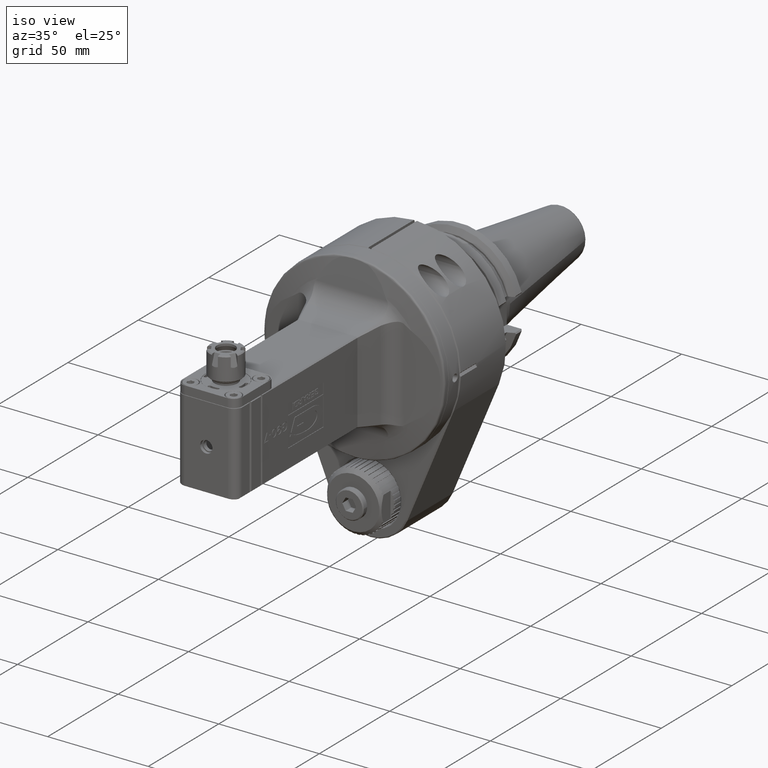
[diagram: clean part render]
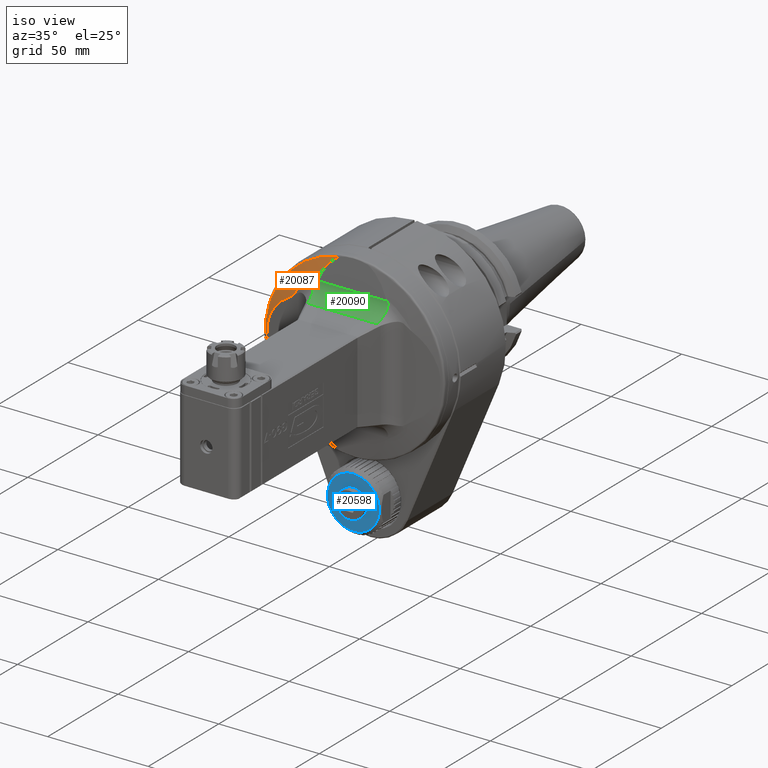
[diagram: same view with three faces highlighted in distinct colors, each labeled with its STEP entity id]
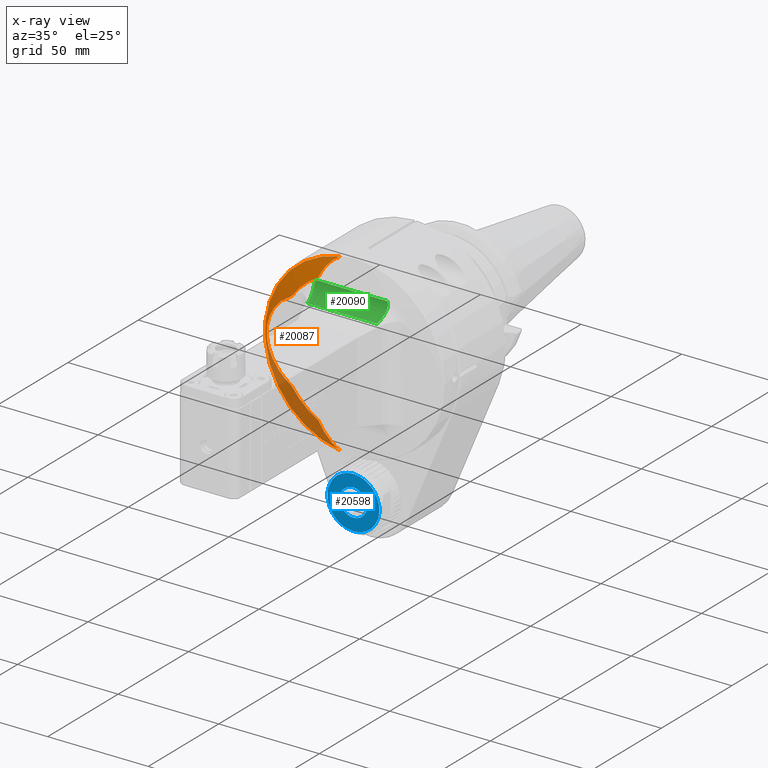
[diagram: x-ray of the same camera — body ghosted, the three highlighted faces saturated]
A machine part, iso view with three faces highlighted in distinct colors.
The next image is the same camera in x-ray (body ghosted, the three faces saturated) — at least one of them is partly hidden behind the body in this view.
Their STEP definitions:

[orange] entity #20087 — the highlighted conical surface has half-angle 79.875 deg.
#376=ELLIPSE('',#21794,27.0482605618794,19.4932377924185);
#378=ELLIPSE('',#21798,27.0482605618794,19.4932377924185);
#379=ELLIPSE('',#21800,28.2530290729761,23.684193051721);
#523=CONICAL_SURFACE('',#21796,40.13996082534,1.39408747072482);
#4948=FACE_OUTER_BOUND('',#6172,.T.);
#6172=EDGE_LOOP('',(#14821,#14822,#14823,#14824,#14825,#14826));
#7615=CIRCLE('',#21791,36.10413101219);
#7616=CIRCLE('',#21797,36.10413101219);
#7617=CIRCLE('',#21799,44.17579063848);
#8814=VERTEX_POINT('',#33792);
#8815=VERTEX_POINT('',#33836);
#8820=VERTEX_POINT('',#34117);
#8823=VERTEX_POINT('',#34176);
#8824=VERTEX_POINT('',#34177);
#8825=VERTEX_POINT('',#34179);
#11072=EDGE_CURVE('',#8815,#8814,#7615,.T.);
#11079=EDGE_CURVE('',#8815,#8820,#376,.T.);
#11083=EDGE_CURVE('',#8823,#8824,#7616,.T.);
#11084=EDGE_CURVE('',#8825,#8824,#378,.T.);
#11085=EDGE_CURVE('',#8820,#8825,#7617,.T.);
#11086=EDGE_CURVE('',#8823,#8814,#379,.T.);
#14821=ORIENTED_EDGE('',*,*,#11083,.T.);
#14822=ORIENTED_EDGE('',*,*,#11084,.F.);
#14823=ORIENTED_EDGE('',*,*,#11085,.F.);
#14824=ORIENTED_EDGE('',*,*,#11079,.F.);
#14825=ORIENTED_EDGE('',*,*,#11072,.T.);
#14826=ORIENTED_EDGE('',*,*,#11086,.F.);
#20087=ADVANCED_FACE('',(#4948),#523,.T.);
#21791=AXIS2_PLACEMENT_3D('',#33837,#25138,#25139);
#21794=AXIS2_PLACEMENT_3D('',#34118,#25146,#25147);
#21796=AXIS2_PLACEMENT_3D('',#34175,#25150,#25151);
#21797=AXIS2_PLACEMENT_3D('',#34178,#25152,#25153);
#21798=AXIS2_PLACEMENT_3D('',#34180,#25154,#25155);
#21799=AXIS2_PLACEMENT_3D('',#34181,#25156,#25157);
#21800=AXIS2_PLACEMENT_3D('',#34182,#25158,#25159);
#25138=DIRECTION('center_axis',(0.,1.,0.));
#25139=DIRECTION('ref_axis',(-0.467113337222199,0.,-0.884197449775298));
#25146=DIRECTION('center_axis',(0.,-0.992546151641327,-0.121869343405103));
#25147=DIRECTION('ref_axis',(-2.46276026974508E-15,0.121869343405102,-0.992546151641328));
#25150=DIRECTION('center_axis',(0.,1.,0.));
#25151=DIRECTION('ref_axis',(0.,0.,1.));
#25152=DIRECTION('center_axis',(0.,1.,0.));
#25153=DIRECTION('ref_axis',(-0.829982324767026,0.,0.557789692065318));
#25154=DIRECTION('center_axis',(0.,-0.992546151641327,0.121869343405103));
#25155=DIRECTION('ref_axis',(-9.85104107898032E-16,0.121869343405103,0.992546151641328));
#25156=DIRECTION('center_axis',(0.,1.,0.));
#25157=DIRECTION('ref_axis',(-0.152045707799498,0.,-0.988373463190787));
#25158=DIRECTION('center_axis',(-0.095845752520218,-0.995396198367179,0.));
#25159=DIRECTION('ref_axis',(-0.995396198367179,0.0958457525202182,4.40112026348895E-15));
#33792=CARTESIAN_POINT('',(-29.96579059119,89.41145196646,-20.13851211958));
#33836=CARTESIAN_POINT('',(-16.86472112461,89.41145196646,-31.92318056734));
#33837=CARTESIAN_POINT('Origin',(0.,89.41145196646,0.));
#34117=CARTESIAN_POINT('',(-6.716739355231,90.85281975687,-43.66217918255));
#34118=CARTESIAN_POINT('Origin',(-1.33226762955019E-14,87.7583298088026,
-18.4595810275838));
#34175=CARTESIAN_POINT('Origin',(0.,90.13213586167,0.));
#34176=CARTESIAN_POINT('',(-29.96579059119,89.41145196646,20.13851211958));
#34177=CARTESIAN_POINT('',(-16.86472112461,89.41145196646,31.92318056734));
#34178=CARTESIAN_POINT('Origin',(0.,89.41145196646,0.));
#34179=CARTESIAN_POINT('',(-6.716739355231,90.85281975687,43.66217918255));
#34180=CARTESIAN_POINT('Origin',(0.,87.7583298088026,18.4595810275838));
#34181=CARTESIAN_POINT('Origin',(0.,90.85281975687,0.));
#34182=CARTESIAN_POINT('Origin',(-15.1644238618566,87.9862424520727,8.88178419700125E-15));

[blue] entity #20598 — the highlighted planar face has unit normal (0, -1, 0).
#4612=FACE_BOUND('',#6725,.T.);
#5459=FACE_OUTER_BOUND('',#6724,.T.);
#6724=EDGE_LOOP('',(#17449));
#6725=EDGE_LOOP('',(#17450));
#7240=CIRCLE('',#21142,12.89999259851);
#7752=CIRCLE('',#22461,6.799999002111);
#8191=VERTEX_POINT('',#29658);
#9605=VERTEX_POINT('',#38642);
#10194=EDGE_CURVE('',#8191,#8191,#7240,.T.);
#12321=EDGE_CURVE('',#9605,#9605,#7752,.T.);
#17449=ORIENTED_EDGE('',*,*,#10194,.T.);
#17450=ORIENTED_EDGE('',*,*,#12321,.F.);
#19616=PLANE('',#22460);
#20598=ADVANCED_FACE('',(#5459,#4612),#19616,.T.);
#21142=AXIS2_PLACEMENT_3D('',#29660,#23458,#23459);
#22460=AXIS2_PLACEMENT_3D('',#38641,#27426,#27427);
#22461=AXIS2_PLACEMENT_3D('',#38643,#27428,#27429);
#23458=DIRECTION('center_axis',(0.,-1.,0.));
#23459=DIRECTION('ref_axis',(0.,0.,1.));
#27426=DIRECTION('center_axis',(0.,-1.,0.));
#27427=DIRECTION('ref_axis',(0.,0.,1.));
#27428=DIRECTION('center_axis',(0.,-1.,0.));
#27429=DIRECTION('ref_axis',(1.,0.,-5.004729392078E-11));
#29658=CARTESIAN_POINT('',(0.,90.5,-52.10000740149));
#29660=CARTESIAN_POINT('Origin',(0.,90.5,-65.));
#38641=CARTESIAN_POINT('Origin',(0.,90.5,-65.));
#38642=CARTESIAN_POINT('',(-2.86328037579941E-14,90.5000000000005,-58.2000009978886));
#38643=CARTESIAN_POINT('Origin',(-2.780004405678E-14,90.5,-65.));

[green] entity #20090 — the highlighted cylindrical surface (edge-blend (fillet) strip) has radius 9 mm, axis along (-1, 0, 0).
#156=B_SPLINE_CURVE_WITH_KNOTS('',3,(#34187,#34188,#34189,#34190,#34191,
#34192,#34193,#34194,#34195,#34196,#34197,#34198,#34199,#34200,#34201,#34202,
#34203,#34204,#34205,#34206,#34207,#34208,#34209,#34210,#34211,#34212,#34213,
#34214,#34215,#34216,#34217,#34218,#34219,#34220,#34221,#34222,#34223,#34224,
#34225,#34226,#34227,#34228,#34229,#34230,#34231,#34232,#34233,#34234,#34235,
#34236,#34237,#34238,#34239,#34240,#34241,#34242,#34243,#34244,#34245,#34246,
#34247,#34248,#34249,#34250,#34251,#34252,#34253,#34254,#34255,#34256,#34257,
#34258,#34259,#34260,#34261,#34262,#34263,#34264,#34265,#34266,#34267,#34268,
#34269,#34270,#34271,#34272,#34273,#34274,#34275,#34276,#34277,#34278,#34279,
#34280,#34281,#34282,#34283,#34284,#34285,#34286,#34287,#34288,#34289,#34290,
#34291,#34292,#34293,#34294,#34295,#34296,#34297,#34298,#34299,#34300,#34301,
#34302,#34303,#34304),.UNSPECIFIED.,.F.,.F.,(4,3,3,3,3,3,3,3,3,3,3,3,3,
3,3,3,3,3,3,3,3,3,3,3,3,3,3,3,3,3,3,3,3,3,3,3,3,3,3,4),(0.,0.03703703703704,
0.07407407407407,0.1111111111111,0.1481481481481,0.1851851851852,0.2222222222222,
0.256366530038744,0.2592592592593,0.293086973480604,0.2962962962963,0.325589205275055,
0.3333333333333,0.363215182848516,0.3703703703704,0.39905914448878,0.4074074074074,
0.438329225332138,0.4444444444444,0.471720678981945,0.4814814814815,0.507406488377274,
0.5185185185185,0.54718454312176,0.5555555555556,0.581668680912067,0.5925925925926,
0.619666199515129,0.6296296296296,0.6666666666667,0.697424217497282,0.7037037037037,
0.7407407407407,0.7777777777778,0.8148148148148,0.8518518518519,0.8888888888889,
0.9259259259259,0.962962962963,1.),.UNSPECIFIED.);
#160=B_SPLINE_CURVE_WITH_KNOTS('',3,(#34383,#34384,#34385,#34386,#34387,
#34388,#34389,#34390,#34391,#34392,#34393,#34394,#34395),.UNSPECIFIED.,
 .F.,.F.,(4,3,3,3,4),(0.,0.25,0.5,0.75,1.),.UNSPECIFIED.);
#161=B_SPLINE_CURVE_WITH_KNOTS('',3,(#34400,#34401,#34402,#34403,#34404,
#34405,#34406,#34407,#34408,#34409,#34410,#34411,#34412),.UNSPECIFIED.,
 .F.,.F.,(4,3,3,3,4),(0.,0.25,0.5,0.75,1.),.UNSPECIFIED.);
#162=B_SPLINE_CURVE_WITH_KNOTS('',3,(#34414,#34415,#34416,#34417,#34418,
#34419,#34420,#34421,#34422,#34423,#34424,#34425,#34426,#34427,#34428,#34429,
#34430,#34431,#34432,#34433,#34434,#34435,#34436,#34437,#34438,#34439,#34440,
#34441,#34442,#34443,#34444,#34445,#34446,#34447,#34448,#34449,#34450,#34451,
#34452,#34453,#34454,#34455,#34456,#34457,#34458,#34459,#34460,#34461,#34462,
#34463,#34464,#34465,#34466,#34467,#34468,#34469,#34470,#34471,#34472,#34473,
#34474,#34475,#34476,#34477,#34478,#34479,#34480,#34481,#34482,#34483,#34484,
#34485,#34486,#34487,#34488,#34489,#34490,#34491,#34492,#34493,#34494,#34495,
#34496,#34497,#34498,#34499,#34500,#34501,#34502,#34503,#34504,#34505,#34506,
#34507,#34508,#34509,#34510,#34511,#34512,#34513,#34514,#34515,#34516,#34517,
#34518,#34519,#34520,#34521,#34522,#34523,#34524,#34525,#34526,#34527,#34528,
#34529,#34530,#34531),.UNSPECIFIED.,.F.,.F.,(4,3,3,3,3,3,3,3,3,3,3,3,3,
3,3,3,3,3,3,3,3,3,3,3,3,3,3,3,3,3,3,3,3,3,3,3,3,3,3,4),(0.,0.03703703703704,
0.07407407407407,0.1111111111111,0.1481481481481,0.1851851851852,0.2222222222222,
0.2592592592593,0.2962962962963,0.327022392863665,0.3333333333333,0.3703703703704,
0.397558669574978,0.4074074074074,0.433375178878216,0.4444444444444,0.473200537845292,
0.4814814814815,0.507581899787348,0.5185185185185,0.545786923472923,0.5555555555556,
0.586937681315505,0.5925925925926,0.621177113709593,0.6296296296296,0.659515578072774,
0.6666666666667,0.695942135587504,0.7037037037037,0.737395565958845,0.7407407407407,
0.774858339972289,0.7777777777778,0.8148148148148,0.8518518518519,0.8888888888889,
0.9259259259259,0.962962962963,1.),.UNSPECIFIED.);
#1148=LINE('',#34398,#2950);
#1149=LINE('',#34532,#2951);
#2950=VECTOR('',#25168,34.57583625287);
#2951=VECTOR('',#25169,35.35472224596);
#4355=CYLINDRICAL_SURFACE('',#21804,9.);
#4951=FACE_OUTER_BOUND('',#6175,.T.);
#6175=EDGE_LOOP('',(#14839,#14840,#14841,#14842,#14843,#14844));
#8826=VERTEX_POINT('',#34184);
#8827=VERTEX_POINT('',#34186);
#8828=VERTEX_POINT('',#34371);
#8829=VERTEX_POINT('',#34397);
#8830=VERTEX_POINT('',#34399);
#8831=VERTEX_POINT('',#34413);
#11088=EDGE_CURVE('',#8827,#8826,#156,.T.);
#11092=EDGE_CURVE('',#8828,#8826,#160,.T.);
#11093=EDGE_CURVE('',#8829,#8828,#1148,.T.);
#11094=EDGE_CURVE('',#8830,#8829,#161,.T.);
#11095=EDGE_CURVE('',#8830,#8831,#162,.T.);
#11096=EDGE_CURVE('',#8831,#8827,#1149,.T.);
#14839=ORIENTED_EDGE('',*,*,#11092,.F.);
#14840=ORIENTED_EDGE('',*,*,#11093,.F.);
#14841=ORIENTED_EDGE('',*,*,#11094,.F.);
#14842=ORIENTED_EDGE('',*,*,#11095,.T.);
#14843=ORIENTED_EDGE('',*,*,#11096,.T.);
#14844=ORIENTED_EDGE('',*,*,#11088,.T.);
#20090=ADVANCED_FACE('',(#4951),#4355,.F.);
#21804=AXIS2_PLACEMENT_3D('',#34396,#25166,#25167);
#25166=DIRECTION('center_axis',(-1.,0.,0.));
#25167=DIRECTION('ref_axis',(0.,0.992546151641327,-0.121869343405103));
#25168=DIRECTION('',(-1.,0.,0.));
#25169=DIRECTION('',(-1.,0.,0.));
#34184=CARTESIAN_POINT('',(-17.50490180808,83.62729135467,23.40642198089));
#34186=CARTESIAN_POINT('',(-17.67736112298,89.25909479988,30.68233102194));
#34187=CARTESIAN_POINT('Ctrl Pts',(-17.677361122979,89.2590947998879,30.6823310219382));
#34188=CARTESIAN_POINT('Ctrl Pts',(-17.7172338579499,89.252933971511,30.6321551013598));
#34189=CARTESIAN_POINT('Ctrl Pts',(-17.7548650536605,89.2462518615009,30.5812465928936));
#34190=CARTESIAN_POINT('Ctrl Pts',(-17.7902024529922,89.2390489579599,30.5298525596544));
#34191=CARTESIAN_POINT('Ctrl Pts',(-17.8255398523239,89.231846054419,30.4784585264152));
#34192=CARTESIAN_POINT('Ctrl Pts',(-17.8585833248345,89.2241233089403,30.4265787448661));
#34193=CARTESIAN_POINT('Ctrl Pts',(-17.889748035211,89.2157667279215,30.3737235903888));
#34194=CARTESIAN_POINT('Ctrl Pts',(-17.9209127455875,89.2074101469027,30.3208684359115));
#34195=CARTESIAN_POINT('Ctrl Pts',(-17.9501986076842,89.1984203472311,30.2670377615341));
#34196=CARTESIAN_POINT('Ctrl Pts',(-17.9778383910329,89.1886402629311,30.2117406570443));
#34197=CARTESIAN_POINT('Ctrl Pts',(-18.0054781743817,89.1788601786312,30.1564435525544));
#34198=CARTESIAN_POINT('Ctrl Pts',(-18.0314718376433,89.1682900680088,30.0996799493343));
#34199=CARTESIAN_POINT('Ctrl Pts',(-18.0558921706048,89.156759488054,30.04109414454));
#34200=CARTESIAN_POINT('Ctrl Pts',(-18.0803125035664,89.1452289080993,29.9825083397455));
#34201=CARTESIAN_POINT('Ctrl Pts',(-18.1031592501548,89.1327394802841,29.9220999073775));
#34202=CARTESIAN_POINT('Ctrl Pts',(-18.1245248194519,89.1190016424408,29.8591869799401));
#34203=CARTESIAN_POINT('Ctrl Pts',(-18.1458903887489,89.1052638045975,29.7962740525029));
#34204=CARTESIAN_POINT('Ctrl Pts',(-18.1657746825205,89.0902781467245,29.730856468052));
#34205=CARTESIAN_POINT('Ctrl Pts',(-18.18409140905,89.0737218073433,29.6624353753302));
#34206=CARTESIAN_POINT('Ctrl Pts',(-18.2009775316679,89.0584585791433,29.5993582223521));
#34207=CARTESIAN_POINT('Ctrl Pts',(-18.2165312990033,89.041860539801,29.533728521559));
#34208=CARTESIAN_POINT('Ctrl Pts',(-18.2306319574851,89.0236274038298,29.4651973196547));
#34209=CARTESIAN_POINT('Ctrl Pts',(-18.2318265749609,89.0220826800214,29.459391309138));
#34210=CARTESIAN_POINT('Ctrl Pts',(-18.2330107644511,89.02052619204,29.4535644863794));
#34211=CARTESIAN_POINT('Ctrl Pts',(-18.2341844536743,89.0189577413287,29.4477166469537));
#34212=CARTESIAN_POINT('Ctrl Pts',(-18.2479096317329,89.0006162034974,29.3793317322855));
#34213=CARTESIAN_POINT('Ctrl Pts',(-18.2601987185499,88.9806425575017,29.3080709632248));
#34214=CARTESIAN_POINT('Ctrl Pts',(-18.2709064329141,88.9587328674908,29.2337635646219));
#34215=CARTESIAN_POINT('Ctrl Pts',(-18.2719223014941,88.9566542384833,29.2267138293619));
#34216=CARTESIAN_POINT('Ctrl Pts',(-18.272923943066,88.9545581498168,29.2196366905217));
#34217=CARTESIAN_POINT('Ctrl Pts',(-18.2739112379592,88.952444320404,29.2125320142637));
#34218=CARTESIAN_POINT('Ctrl Pts',(-18.282922715178,88.9331504643031,29.1476844913125));
#34219=CARTESIAN_POINT('Ctrl Pts',(-18.2907380265973,88.912382302136,29.0805413557444));
#34220=CARTESIAN_POINT('Ctrl Pts',(-18.2972828207608,88.8898259357248,29.01076795986));
#34221=CARTESIAN_POINT('Ctrl Pts',(-18.2990130594391,88.8838627386199,28.9923220583902));
#34222=CARTESIAN_POINT('Ctrl Pts',(-18.300654526662,88.8777743180017,28.9736924575184));
#34223=CARTESIAN_POINT('Ctrl Pts',(-18.3022059124798,88.8715543296477,28.9548732725599));
#34224=CARTESIAN_POINT('Ctrl Pts',(-18.3081921613123,88.8475535958553,28.88225669795));
#34225=CARTESIAN_POINT('Ctrl Pts',(-18.312837229868,88.821597383167,28.8068155686163));
#34226=CARTESIAN_POINT('Ctrl Pts',(-18.3160358041259,88.7933644154865,28.7284543842173));
#34227=CARTESIAN_POINT('Ctrl Pts',(-18.3168017004472,88.7866040515421,28.7096908545862));
#34228=CARTESIAN_POINT('Ctrl Pts',(-18.3174847172125,88.779712958738,28.6907600252466));
#34229=CARTESIAN_POINT('Ctrl Pts',(-18.3180835222015,88.7726863628323,28.6716608293995));
#34230=CARTESIAN_POINT('Ctrl Pts',(-18.3204844349683,88.744513177693,28.5950824708556));
#34231=CARTESIAN_POINT('Ctrl Pts',(-18.3215307152963,88.7141649250617,28.5157956012498));
#34232=CARTESIAN_POINT('Ctrl Pts',(-18.3211575688271,88.6813084575688,28.4337372492643));
#34233=CARTESIAN_POINT('Ctrl Pts',(-18.3210489854202,88.6717474206253,28.4098587560872));
#34234=CARTESIAN_POINT('Ctrl Pts',(-18.3208203026174,88.6619737381211,28.3857457711738));
#34235=CARTESIAN_POINT('Ctrl Pts',(-18.3204701708906,88.6519785603306,28.3613972325434));
#34236=CARTESIAN_POINT('Ctrl Pts',(-18.3191732891788,88.6149565989029,28.2712106768966));
#34237=CARTESIAN_POINT('Ctrl Pts',(-18.3162095916324,88.5748983877502,28.1777902025322));
#34238=CARTESIAN_POINT('Ctrl Pts',(-18.3115462390987,88.5314451539607,28.0813692537875));
#34239=CARTESIAN_POINT('Ctrl Pts',(-18.310623996344,88.5228516732538,28.0623006715321));
#34240=CARTESIAN_POINT('Ctrl Pts',(-18.3096353632947,88.5141253232964,28.0431148475003));
#34241=CARTESIAN_POINT('Ctrl Pts',(-18.3085802142472,88.5052632015043,28.0238137509485));
#34242=CARTESIAN_POINT('Ctrl Pts',(-18.3038738427561,88.4657347221374,27.9377234201338));
#34243=CARTESIAN_POINT('Ctrl Pts',(-18.2978453240762,88.42350144447,27.8493399090426));
#34244=CARTESIAN_POINT('Ctrl Pts',(-18.2905851959041,88.3785968701287,27.7593846243053));
#34245=CARTESIAN_POINT('Ctrl Pts',(-18.2879871585133,88.362527764957,27.7271941191642));
#34246=CARTESIAN_POINT('Ctrl Pts',(-18.2852315299893,88.3461170238791,27.6948022312797));
#34247=CARTESIAN_POINT('Ctrl Pts',(-18.2823228459035,88.329367744176,27.6622415976175));
#34248=CARTESIAN_POINT('Ctrl Pts',(-18.2745972869667,88.2848811159688,27.5757595022918));
#34249=CARTESIAN_POINT('Ctrl Pts',(-18.2657911143598,88.2380024656355,27.4880877772703));
#34250=CARTESIAN_POINT('Ctrl Pts',(-18.2560523802534,88.1888209804831,27.3997877649324));
#34251=CARTESIAN_POINT('Ctrl Pts',(-18.2518781438738,88.1677407104719,27.3619404307923));
#34252=CARTESIAN_POINT('Ctrl Pts',(-18.2475326390244,88.14623796661,27.3239774607355));
#34253=CARTESIAN_POINT('Ctrl Pts',(-18.2430277137071,88.1243225459687,27.2859420058368));
#34254=CARTESIAN_POINT('Ctrl Pts',(-18.2314062279535,88.0677867033448,27.1878208459707));
#34255=CARTESIAN_POINT('Ctrl Pts',(-18.2187222110158,88.0085009500269,27.0892182764914));
#34256=CARTESIAN_POINT('Ctrl Pts',(-18.2051743063955,87.9465321052079,26.9906032983913));
#34257=CARTESIAN_POINT('Ctrl Pts',(-18.2012180662263,87.928436049767,26.9618058903355));
#34258=CARTESIAN_POINT('Ctrl Pts',(-18.1971881738088,87.9101115117793,26.9330073144342));
#34259=CARTESIAN_POINT('Ctrl Pts',(-18.1930895991305,87.8915609520277,26.9042189587913));
#34260=CARTESIAN_POINT('Ctrl Pts',(-18.180304216812,87.8336930303093,26.8144145360107));
#34261=CARTESIAN_POINT('Ctrl Pts',(-18.1668508001592,87.7736218589718,26.7247108625941));
#34262=CARTESIAN_POINT('Ctrl Pts',(-18.1528949138825,87.7115059549695,26.6355233442872));
#34263=CARTESIAN_POINT('Ctrl Pts',(-18.1470567437275,87.685520989937,26.5982135026006));
#34264=CARTESIAN_POINT('Ctrl Pts',(-18.1411305898322,87.6591787483801,26.5609937091952));
#34265=CARTESIAN_POINT('Ctrl Pts',(-18.1351282844067,87.6324932223704,26.523893097976));
#34266=CARTESIAN_POINT('Ctrl Pts',(-18.1202522892073,87.5663563418429,26.4319436760006));
#34267=CARTESIAN_POINT('Ctrl Pts',(-18.1049082697638,87.4981073142986,26.3407276914174));
#34268=CARTESIAN_POINT('Ctrl Pts',(-18.0892661218742,87.4279427052819,26.2505970415143));
#34269=CARTESIAN_POINT('Ctrl Pts',(-18.0835096134125,87.4021212408406,26.2174278212456));
#34270=CARTESIAN_POINT('Ctrl Pts',(-18.0777126415316,87.376040769888,26.1844053328089));
#34271=CARTESIAN_POINT('Ctrl Pts',(-18.071883334408,87.3497125679561,26.1515461769964));
#34272=CARTESIAN_POINT('Ctrl Pts',(-18.0502140637495,87.251842800329,26.0293989087511));
#34273=CARTESIAN_POINT('Ctrl Pts',(-18.0280965277533,87.1505466652648,25.9095100663906));
#34274=CARTESIAN_POINT('Ctrl Pts',(-18.0058116499939,87.0459751642386,25.7921403841172));
#34275=CARTESIAN_POINT('Ctrl Pts',(-17.9873050869621,86.9591333562662,25.6946702769681));
#34276=CARTESIAN_POINT('Ctrl Pts',(-17.9686840225266,86.8700315051026,25.5989384686131));
#34277=CARTESIAN_POINT('Ctrl Pts',(-17.9501139314904,86.7789134282329,25.505223268226));
#34278=CARTESIAN_POINT('Ctrl Pts',(-17.9463226468347,86.7603106886972,25.4860902978733));
#34279=CARTESIAN_POINT('Ctrl Pts',(-17.9425334368211,86.7416240401632,25.4670412802402));
#34280=CARTESIAN_POINT('Ctrl Pts',(-17.9387476293014,86.722855755571,25.448078422847));
#34281=CARTESIAN_POINT('Ctrl Pts',(-17.9164185583058,86.6121585378833,25.3362335953388));
#34282=CARTESIAN_POINT('Ctrl Pts',(-17.8942076982895,86.4986191441668,25.2273874495808));
#34283=CARTESIAN_POINT('Ctrl Pts',(-17.8723106025836,86.3824330856399,25.1216937555406));
#34284=CARTESIAN_POINT('Ctrl Pts',(-17.8504135068777,86.2662470271128,25.0160000615001));
#34285=CARTESIAN_POINT('Ctrl Pts',(-17.8288295839943,86.1474154102143,24.9134579691294));
#34286=CARTESIAN_POINT('Ctrl Pts',(-17.8077104337097,86.026080903095,24.8141624165828));
#34287=CARTESIAN_POINT('Ctrl Pts',(-17.7865912834252,85.9047463959761,24.7148668640365));
#34288=CARTESIAN_POINT('Ctrl Pts',(-17.7659386347858,85.7809066962782,24.6188202630734));
#34289=CARTESIAN_POINT('Ctrl Pts',(-17.7459121521228,85.6549048443909,24.5262463504028));
#34290=CARTESIAN_POINT('Ctrl Pts',(-17.7258856694598,85.5289029925033,24.433672437732));
#34291=CARTESIAN_POINT('Ctrl Pts',(-17.7064840334522,85.4007403599021,24.3445694044589));
#34292=CARTESIAN_POINT('Ctrl Pts',(-17.6878265711407,85.2706540361206,24.2590373661652));
#34293=CARTESIAN_POINT('Ctrl Pts',(-17.6691691088292,85.1405677123395,24.1735053278717));
#34294=CARTESIAN_POINT('Ctrl Pts',(-17.6512534927783,85.0085603119406,24.0915410776225));
#34295=CARTESIAN_POINT('Ctrl Pts',(-17.6341499143532,84.8746261867135,24.0130987035765));
#34296=CARTESIAN_POINT('Ctrl Pts',(-17.617046335928,84.7406920614864,23.9346563295304));
#34297=CARTESIAN_POINT('Ctrl Pts',(-17.6007586738228,84.6048276898881,23.8597411079347));
#34298=CARTESIAN_POINT('Ctrl Pts',(-17.585393573722,84.4674226767168,23.7885290786656));
#34299=CARTESIAN_POINT('Ctrl Pts',(-17.5700284736212,84.3300176635451,23.7173170493963));
#34300=CARTESIAN_POINT('Ctrl Pts',(-17.5555855243148,84.1910721499552,23.649807671524));
#34301=CARTESIAN_POINT('Ctrl Pts',(-17.5421492619226,84.0509613613002,23.5861093051705));
#34302=CARTESIAN_POINT('Ctrl Pts',(-17.5287129995303,83.9108505726456,23.5224109388173));
#34303=CARTESIAN_POINT('Ctrl Pts',(-17.5162811423319,83.7695761532488,23.4625205137325));
#34304=CARTESIAN_POINT('Ctrl Pts',(-17.5049018080804,83.6272913546698,23.4064219808905));
#34371=CARTESIAN_POINT('',(-17.28791812643,82.44657966571,23.03250416138));
#34383=CARTESIAN_POINT('Ctrl Pts',(-17.28791812643,82.4465796657093,23.032504161383));
#34384=CARTESIAN_POINT('Ctrl Pts',(-17.31671505762,82.5484156017902,23.0571916610391));
#34385=CARTESIAN_POINT('Ctrl Pts',(-17.342789985785,82.6495112569247,23.0835824698902));
#34386=CARTESIAN_POINT('Ctrl Pts',(-17.3661872507092,82.749846575919,23.1116388829694));
#34387=CARTESIAN_POINT('Ctrl Pts',(-17.3895845156333,82.8501818949133,23.1396952960487));
#34388=CARTESIAN_POINT('Ctrl Pts',(-17.4103041173167,82.9497563256193,23.1694192629269));
#34389=CARTESIAN_POINT('Ctrl Pts',(-17.4283536790433,83.048384651651,23.2007170986385));
#34390=CARTESIAN_POINT('Ctrl Pts',(-17.44640324077,83.1470129776828,23.2320149343501));
#34391=CARTESIAN_POINT('Ctrl Pts',(-17.46178276254,83.2446950922523,23.264887113195));
#34392=CARTESIAN_POINT('Ctrl Pts',(-17.47452380724,83.3412123474186,23.2992036659209));
#34393=CARTESIAN_POINT('Ctrl Pts',(-17.48726485194,83.4377296025848,23.3335202186467));
#34394=CARTESIAN_POINT('Ctrl Pts',(-17.49736741957,83.5330829477381,23.3692784949847));
#34395=CARTESIAN_POINT('Ctrl Pts',(-17.50490180808,83.6272913546708,23.406421980888));
#34396=CARTESIAN_POINT('Origin',(162.4576946716,80.32617943511,31.77915511258));
#34397=CARTESIAN_POINT('',(17.28791812643,82.44657966571,23.03250416138));
#34398=CARTESIAN_POINT('',(17.28791812643,82.44657966571,23.03250416138));
#34399=CARTESIAN_POINT('',(17.50490180808,83.62729135467,23.40642198089));
#34400=CARTESIAN_POINT('Ctrl Pts',(17.50490180808,83.6272913546708,23.406421980888));
#34401=CARTESIAN_POINT('Ctrl Pts',(17.49736727191,83.533081101488,23.369277767065));
#34402=CARTESIAN_POINT('Ctrl Pts',(17.48726444475,83.4377263721098,23.3335190318657));
#34403=CARTESIAN_POINT('Ctrl Pts',(17.47452341403,83.3412093685039,23.2992026067732));
#34404=CARTESIAN_POINT('Ctrl Pts',(17.46178238331,83.2446923648981,23.2648861816808));
#34405=CARTESIAN_POINT('Ctrl Pts',(17.44640314903,83.147012157425,23.232014664651));
#34406=CARTESIAN_POINT('Ctrl Pts',(17.42835354302,83.048383908405,23.2007168627834));
#34407=CARTESIAN_POINT('Ctrl Pts',(17.41030393701,82.949755659385,23.1694190609158));
#34408=CARTESIAN_POINT('Ctrl Pts',(17.38958395927,82.8501794505557,23.1396945788616));
#34409=CARTESIAN_POINT('Ctrl Pts',(17.36618662143,82.7498438774257,23.1116381283997));
#34410=CARTESIAN_POINT('Ctrl Pts',(17.34278928359,82.6495083042957,23.0835816779377));
#34411=CARTESIAN_POINT('Ctrl Pts',(17.31671458565,82.5484139327209,23.0571912564162));
#34412=CARTESIAN_POINT('Ctrl Pts',(17.28791812643,82.4465796657093,23.032504161383));
#34413=CARTESIAN_POINT('',(17.67736112298,89.25909479988,30.68233102194));
#34414=CARTESIAN_POINT('Ctrl Pts',(17.5049018080804,83.6272913546698,23.4064219808905));
#34415=CARTESIAN_POINT('Ctrl Pts',(17.5162810032234,83.7695744138379,23.4625198279345));
#34416=CARTESIAN_POINT('Ctrl Pts',(17.5287127315948,83.9108475662556,23.5224096495988));
#34417=CARTESIAN_POINT('Ctrl Pts',(17.5421489002406,84.0509575898088,23.5861075905483));
#34418=CARTESIAN_POINT('Ctrl Pts',(17.5555850688864,84.1910676133621,23.6498055314978));
#34419=CARTESIAN_POINT('Ctrl Pts',(17.5700279617567,84.3300128621893,23.7173146649781));
#34420=CARTESIAN_POINT('Ctrl Pts',(17.585393041614,84.4674179183442,23.7885266125837));
#34421=CARTESIAN_POINT('Ctrl Pts',(17.6007581214713,84.6048229744991,23.8597385601892));
#34422=CARTESIAN_POINT('Ctrl Pts',(17.6170458002928,84.7406876961045,23.9346538638956));
#34423=CARTESIAN_POINT('Ctrl Pts',(17.6341494084112,84.8746222246455,24.0130963830644));
#34424=CARTESIAN_POINT('Ctrl Pts',(17.6512530165297,85.0085567531864,24.0915389022332));
#34425=CARTESIAN_POINT('Ctrl Pts',(17.6691686780445,85.1405646079153,24.173503364397));
#34426=CARTESIAN_POINT('Ctrl Pts',(17.6878261283023,85.2706509485873,24.2590353361158));
#34427=CARTESIAN_POINT('Ctrl Pts',(17.7064835785602,85.4007372892596,24.3445673078347));
#34428=CARTESIAN_POINT('Ctrl Pts',(17.725885133827,85.5288995133501,24.4336699806947));
#34429=CARTESIAN_POINT('Ctrl Pts',(17.7459115694111,85.654901178144,24.5262436568067));
#34430=CARTESIAN_POINT('Ctrl Pts',(17.7659380049953,85.7809028429375,24.6188173329185));
#34431=CARTESIAN_POINT('Ctrl Pts',(17.786590643093,85.90474257163,24.7148638253098));
#34432=CARTESIAN_POINT('Ctrl Pts',(17.8077098515757,86.0260775585654,24.8141596795442));
#34433=CARTESIAN_POINT('Ctrl Pts',(17.8288290600585,86.147412545501,24.9134555337789));
#34434=CARTESIAN_POINT('Ctrl Pts',(17.8504131361133,86.2662450610705,25.0159983744527));
#34435=CARTESIAN_POINT('Ctrl Pts',(17.8723100602536,86.3824302080433,25.1216911378123));
#34436=CARTESIAN_POINT('Ctrl Pts',(17.8942069843939,86.4986153550158,25.2273839011715));
#34437=CARTESIAN_POINT('Ctrl Pts',(17.9164172986238,86.6121520995684,25.3362273677039));
#34438=CARTESIAN_POINT('Ctrl Pts',(17.9387460217958,86.7228477866198,25.4480703713371));
#34439=CARTESIAN_POINT('Ctrl Pts',(17.9572700334149,86.814681438608,25.5408558424477));
#34440=CARTESIAN_POINT('Ctrl Pts',(17.9758769248921,86.9045581904804,25.6357073172143));
#34441=CARTESIAN_POINT('Ctrl Pts',(17.9944045794991,86.9922260404493,25.7323527473089));
#34442=CARTESIAN_POINT('Ctrl Pts',(17.998210039298,87.0102324468615,25.7522030903114));
#34443=CARTESIAN_POINT('Ctrl Pts',(18.0020121052001,87.0281457990483,25.7721290095226));
#34444=CARTESIAN_POINT('Ctrl Pts',(18.0058092965826,87.0459641202827,25.7921279884603));
#34445=CARTESIAN_POINT('Ctrl Pts',(18.0280938861055,87.1505345605637,25.9094960617584));
#34446=CARTESIAN_POINT('Ctrl Pts',(18.0502109751389,87.2518290357521,26.0293826246486));
#34447=CARTESIAN_POINT('Ctrl Pts',(18.0718791566803,87.3496937003799,26.1515226294149));
#34448=CARTESIAN_POINT('Ctrl Pts',(18.0877854237603,87.421534592533,26.2411836622645));
#34449=CARTESIAN_POINT('Ctrl Pts',(18.1034512691543,87.4915258348397,26.3320602359723));
#34450=CARTESIAN_POINT('Ctrl Pts',(18.1187089519204,87.5594562099813,26.4238112643478));
#34451=CARTESIAN_POINT('Ctrl Pts',(18.1242359220469,87.5840634298222,26.4570473199586));
#34452=CARTESIAN_POINT('Ctrl Pts',(18.1297092376686,87.6084006367862,26.4903978584898));
#34453=CARTESIAN_POINT('Ctrl Pts',(18.1351206330915,87.6324592065186,26.5238458065615));
#34454=CARTESIAN_POINT('Ctrl Pts',(18.1493886420559,87.695893471026,26.6120366678142));
#34455=CARTESIAN_POINT('Ctrl Pts',(18.1632274897766,87.7573878597518,26.7009069257002));
#34456=CARTESIAN_POINT('Ctrl Pts',(18.1764753559145,87.816762130925,26.7900504495612));
#34457=CARTESIAN_POINT('Ctrl Pts',(18.1821225154573,87.8420715640488,26.8280496032518));
#34458=CARTESIAN_POINT('Ctrl Pts',(18.1876622149286,87.8669963300521,26.8660980982812));
#34459=CARTESIAN_POINT('Ctrl Pts',(18.1930816561258,87.8915249995235,26.9041631647868));
#34460=CARTESIAN_POINT('Ctrl Pts',(18.207160454427,87.9552463644238,27.0030498164079));
#34461=CARTESIAN_POINT('Ctrl Pts',(18.2204274718045,88.016291625567,27.1020500605136));
#34462=CARTESIAN_POINT('Ctrl Pts',(18.2326826888384,88.0745820909384,27.2006989117739));
#34463=CARTESIAN_POINT('Ctrl Pts',(18.2362118456015,88.0913681004821,27.229106997868));
#34464=CARTESIAN_POINT('Ctrl Pts',(18.239657107759,88.1079259746331,27.2574858319392));
#34465=CARTESIAN_POINT('Ctrl Pts',(18.2430137412956,88.1242545837049,27.285824056792));
#34466=CARTESIAN_POINT('Ctrl Pts',(18.2535933978243,88.1757201588673,27.375142322342));
#34467=CARTESIAN_POINT('Ctrl Pts',(18.2632934683915,88.2249046111851,27.4640586915623));
#34468=CARTESIAN_POINT('Ctrl Pts',(18.271962296229,88.2717019101761,27.5520201832784));
#34469=CARTESIAN_POINT('Ctrl Pts',(18.2755947155946,88.2913109528633,27.5888778798352));
#34470=CARTESIAN_POINT('Ctrl Pts',(18.2790461089172,88.3105014662229,27.6255676897059));
#34471=CARTESIAN_POINT('Ctrl Pts',(18.2823055489391,88.329268169211,27.6620480318534));
#34472=CARTESIAN_POINT('Ctrl Pts',(18.2904323505243,88.3760594188029,27.753004914141));
#34473=CARTESIAN_POINT('Ctrl Pts',(18.2973656450639,88.4202128603327,27.8426610336834));
#34474=CARTESIAN_POINT('Ctrl Pts',(18.3030087629773,88.4616766193258,27.9303026865422));
#34475=CARTESIAN_POINT('Ctrl Pts',(18.3050303532679,88.4765305943582,27.9616994280577));
#34476=CARTESIAN_POINT('Ctrl Pts',(18.3068864813748,88.4910398583373,27.9928375120967));
#34477=CARTESIAN_POINT('Ctrl Pts',(18.3085731121158,88.50520351537,28.0236837580639));
#34478=CARTESIAN_POINT('Ctrl Pts',(18.3139914816044,88.5507048365844,28.122778571132));
#34479=CARTESIAN_POINT('Ctrl Pts',(18.317655466953,88.5926417080883,28.2188594459981));
#34480=CARTESIAN_POINT('Ctrl Pts',(18.3195921295972,88.6313791806568,28.311640882797));
#34481=CARTESIAN_POINT('Ctrl Pts',(18.3199411070855,88.6383594907909,28.3283596607815));
#34482=CARTESIAN_POINT('Ctrl Pts',(18.3202340728501,88.6452358472582,28.3449713963853));
#34483=CARTESIAN_POINT('Ctrl Pts',(18.3204712815127,88.6520102938757,28.3614745377907));
#34484=CARTESIAN_POINT('Ctrl Pts',(18.3216703270314,88.686253857197,28.4448948375766));
#34485=CARTESIAN_POINT('Ctrl Pts',(18.3214421219185,88.7178963969578,28.5255376794795));
#34486=CARTESIAN_POINT('Ctrl Pts',(18.3198475438245,88.7472825379424,28.603462270857));
#34487=CARTESIAN_POINT('Ctrl Pts',(18.3193760230083,88.7559720949052,28.6265047716036));
#34488=CARTESIAN_POINT('Ctrl Pts',(18.3187851273936,88.7644640844211,28.6493097910836));
#34489=CARTESIAN_POINT('Ctrl Pts',(18.3180766697299,88.7727667537753,28.6718793494346));
#34490=CARTESIAN_POINT('Ctrl Pts',(18.3155717434559,88.8021228828386,28.7516795726638));
#34491=CARTESIAN_POINT('Ctrl Pts',(18.3115958082151,88.8291152508667,28.828533485526));
#34492=CARTESIAN_POINT('Ctrl Pts',(18.3062520424188,88.8540751234055,28.9025270867756));
#34493=CARTESIAN_POINT('Ctrl Pts',(18.3049733899207,88.8600475040431,28.9202322233191));
#34494=CARTESIAN_POINT('Ctrl Pts',(18.3036164814228,88.8659033247678,28.9377737206399));
#34495=CARTESIAN_POINT('Ctrl Pts',(18.3021828345725,88.8716467714337,28.9551529872457));
#34496=CARTESIAN_POINT('Ctrl Pts',(18.2963137024455,88.8951595684237,29.0263010610949));
#34497=CARTESIAN_POINT('Ctrl Pts',(18.2891570637626,88.9167924719294,29.0947279195132));
#34498=CARTESIAN_POINT('Ctrl Pts',(18.2807875894747,88.9368713660611,29.1607600024289));
#34499=CARTESIAN_POINT('Ctrl Pts',(18.2785686585002,88.9421947207415,29.1782665541016));
#34500=CARTESIAN_POINT('Ctrl Pts',(18.2762645064263,88.9474085938087,29.1956049145936));
#34501=CARTESIAN_POINT('Ctrl Pts',(18.2738765794763,88.9525185322382,29.2127814489378));
#34502=CARTESIAN_POINT('Ctrl Pts',(18.263510928532,88.9747000475097,29.2873423392736));
#34503=CARTESIAN_POINT('Ctrl Pts',(18.2515667192724,88.9949265737735,29.3588513626694));
#34504=CARTESIAN_POINT('Ctrl Pts',(18.2381863777462,89.0135065664923,29.4274865024534));
#34505=CARTESIAN_POINT('Ctrl Pts',(18.2368578794665,89.0153513242151,29.4343011016885));
#34506=CARTESIAN_POINT('Ctrl Pts',(18.2355152305696,89.0171798139494,29.4410873901043));
#34507=CARTESIAN_POINT('Ctrl Pts',(18.2341585746714,89.0189923138784,29.4478455546693));
#34508=CARTESIAN_POINT('Ctrl Pts',(18.2203219756143,89.0374780882301,29.5167724016071));
#34509=CARTESIAN_POINT('Ctrl Pts',(18.205027594179,89.0543044133059,29.5827716826033));
#34510=CARTESIAN_POINT('Ctrl Pts',(18.1883950623546,89.0697756908154,29.6461935159756));
#34511=CARTESIAN_POINT('Ctrl Pts',(18.1869718191223,89.0710995656917,29.6516205126639));
#34512=CARTESIAN_POINT('Ctrl Pts',(18.1855387793266,89.0724134904838,29.6570286502247));
#34513=CARTESIAN_POINT('Ctrl Pts',(18.1840960187268,89.0737176404558,29.6624181553521));
#34514=CARTESIAN_POINT('Ctrl Pts',(18.1657926393328,89.090262555619,29.730791353999));
#34515=CARTESIAN_POINT('Ctrl Pts',(18.1459246214702,89.1052386517761,29.7961635167619));
#34516=CARTESIAN_POINT('Ctrl Pts',(18.1245717899567,89.118971441637,29.8590486754164));
#34517=CARTESIAN_POINT('Ctrl Pts',(18.1032189584431,89.132704231498,29.9219338340711));
#34518=CARTESIAN_POINT('Ctrl Pts',(18.0803814226231,89.1451930574746,29.9823321689132));
#34519=CARTESIAN_POINT('Ctrl Pts',(18.0559642676667,89.1567254355914,30.0409211428652));
#34520=CARTESIAN_POINT('Ctrl Pts',(18.0315471127103,89.1682578137082,30.0995101168171));
#34521=CARTESIAN_POINT('Ctrl Pts',(18.0055505959751,89.1788321164517,30.1562901579149));
#34522=CARTESIAN_POINT('Ctrl Pts',(17.9779076962866,89.1886157390436,30.2116020006216));
#34523=CARTESIAN_POINT('Ctrl Pts',(17.9502647965982,89.1983993616354,30.2669138433284));
#34524=CARTESIAN_POINT('Ctrl Pts',(17.9209755479622,89.2073920940919,30.320757543971));
#34525=CARTESIAN_POINT('Ctrl Pts',(17.8898023734745,89.2157521576404,30.373631434044));
#34526=CARTESIAN_POINT('Ctrl Pts',(17.8586291989868,89.2241122211889,30.426505324117));
#34527=CARTESIAN_POINT('Ctrl Pts',(17.8255721888694,89.2318389700668,30.4784095575273));
#34528=CARTESIAN_POINT('Ctrl Pts',(17.7902246186402,89.2390444383208,30.5298203157275));
#34529=CARTESIAN_POINT('Ctrl Pts',(17.7548770484111,89.2462499065748,30.5812310739275));
#34530=CARTESIAN_POINT('Ctrl Pts',(17.7172390448598,89.2529331700711,30.6321485741497));
#34531=CARTESIAN_POINT('Ctrl Pts',(17.677361122979,89.2590947998879,30.6823310219382));
#34532=CARTESIAN_POINT('',(17.67736112298,89.25909479988,30.68233102194));